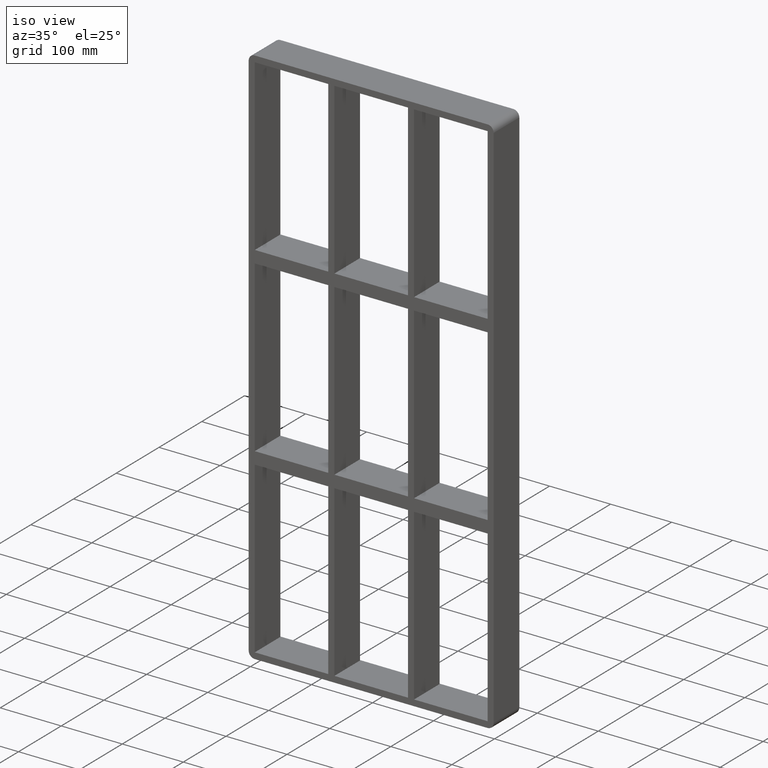
[diagram: clean part render]
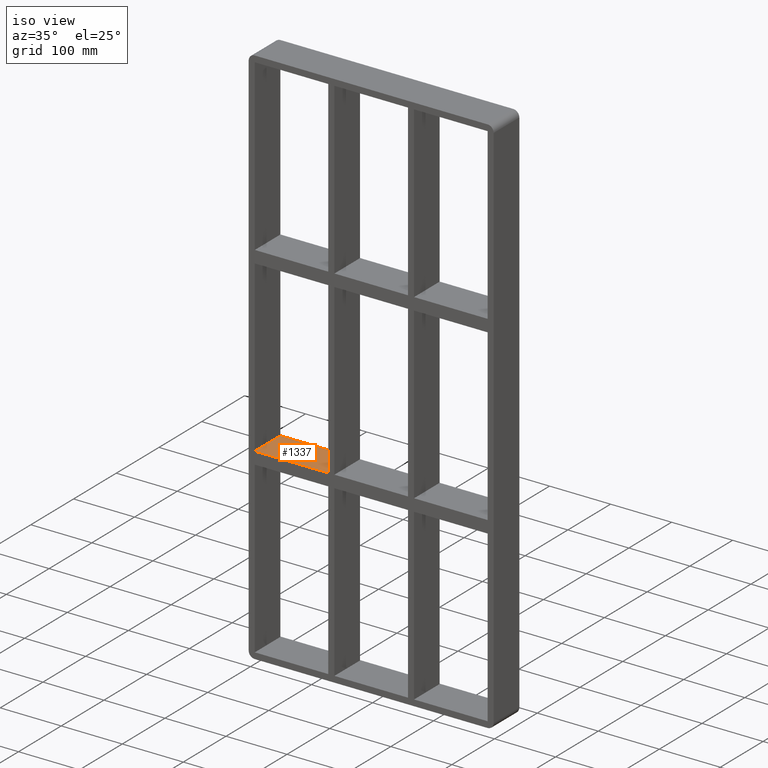
[diagram: same view with one face highlighted and labeled with its STEP entity id]
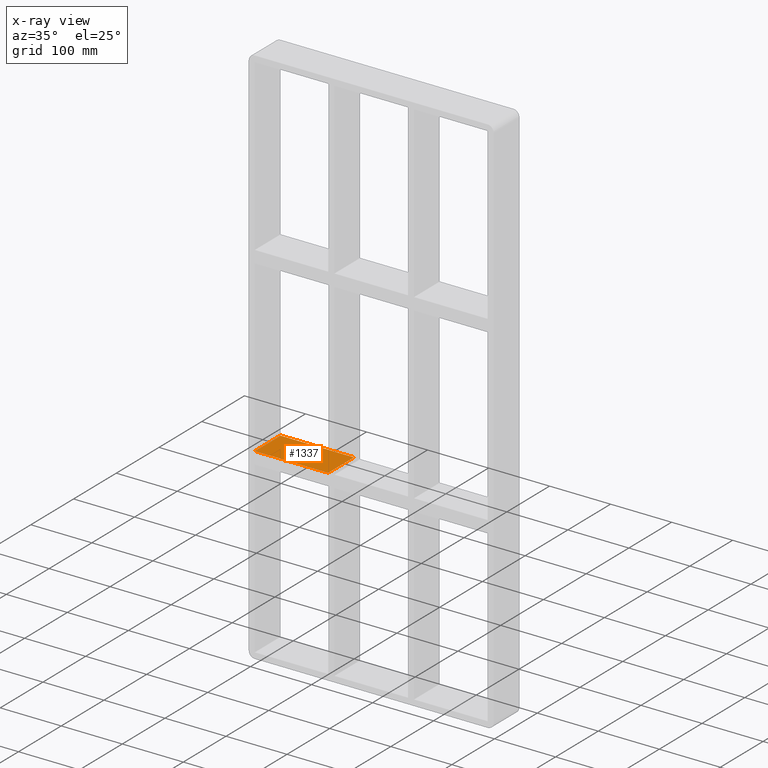
[diagram: x-ray of the same camera — body ghosted, the highlighted face saturated]
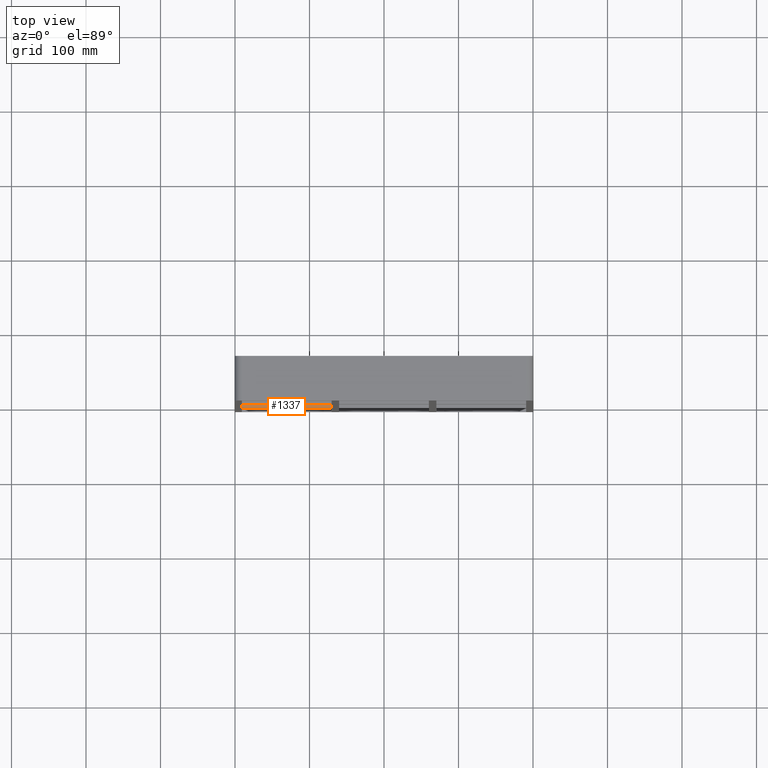
[diagram: same view with one face highlighted and labeled with its STEP entity id]
A machine part, iso view. The second image highlights one B-rep face of the part: STEP entity #1337.
The next image is the same camera in x-ray: the body ghosted, the highlighted face saturated — about 0% of this face is hidden behind the body in this view.
A second angle (top view) of the same face is appended — the face is thin or edge-on in the first view.
In plain terms, the highlighted planar face has unit normal (0, 0, 1).
Its self-contained STEP definition (entity closure, byte-faithful):
#500=CARTESIAN_POINT('',(-70.250000000001322,57.0,-139.00000000000006));
#501=VERTEX_POINT('',#500);
#508=CARTESIAN_POINT('',(-70.250000000001322,-3.0,-139.00000000000006));
#509=VERTEX_POINT('',#508);
#510=CARTESIAN_POINT('',(-70.250000000001322,57.0,-139.00000000000006));
#511=DIRECTION('',(0.0,-1.0,0.0));
#512=VECTOR('',#511,60.0);
#513=LINE('',#510,#512);
#514=EDGE_CURVE('',#501,#509,#513,.T.);
#631=CARTESIAN_POINT('',(-190.74999999999972,57.0,-139.00000000000006));
#632=VERTEX_POINT('',#631);
#639=CARTESIAN_POINT('',(-190.74999999999972,57.0,-139.00000000000006));
#640=DIRECTION('',(1.0,0.0,0.0));
#641=VECTOR('',#640,120.49999999999839);
#642=LINE('',#639,#641);
#643=EDGE_CURVE('',#632,#501,#642,.T.);
#1114=CARTESIAN_POINT('',(-190.74999999999972,-3.0,-139.00000000000006));
#1115=VERTEX_POINT('',#1114);
#1116=CARTESIAN_POINT('',(-190.74999999999972,-3.0,-139.00000000000006));
#1117=DIRECTION('',(1.0,0.0,0.0));
#1118=VECTOR('',#1117,120.49999999999839);
#1119=LINE('',#1116,#1118);
#1120=EDGE_CURVE('',#1115,#509,#1119,.T.);
#1321=CARTESIAN_POINT('',(-190.74999999999972,-3.0,-139.00000000000006));
#1322=DIRECTION('',(0.0,0.0,1.0));
#1323=DIRECTION('',(1.0,0.0,0.0));
#1324=AXIS2_PLACEMENT_3D('',#1321,#1322,#1323);
#1325=PLANE('',#1324);
#1326=ORIENTED_EDGE('',*,*,#514,.F.);
#1327=ORIENTED_EDGE('',*,*,#643,.F.);
#1328=CARTESIAN_POINT('',(-190.75000000000003,-3.0,-139.00000000000006));
#1329=DIRECTION('',(0.0,1.0,0.0));
#1330=VECTOR('',#1329,60.000000000000007);
#1331=LINE('',#1328,#1330);
#1332=EDGE_CURVE('',#1115,#632,#1331,.T.);
#1333=ORIENTED_EDGE('',*,*,#1332,.F.);
#1334=ORIENTED_EDGE('',*,*,#1120,.T.);
#1335=EDGE_LOOP('',(#1326,#1327,#1333,#1334));
#1336=FACE_OUTER_BOUND('',#1335,.T.);
#1337=ADVANCED_FACE('',(#1336),#1325,.T.);